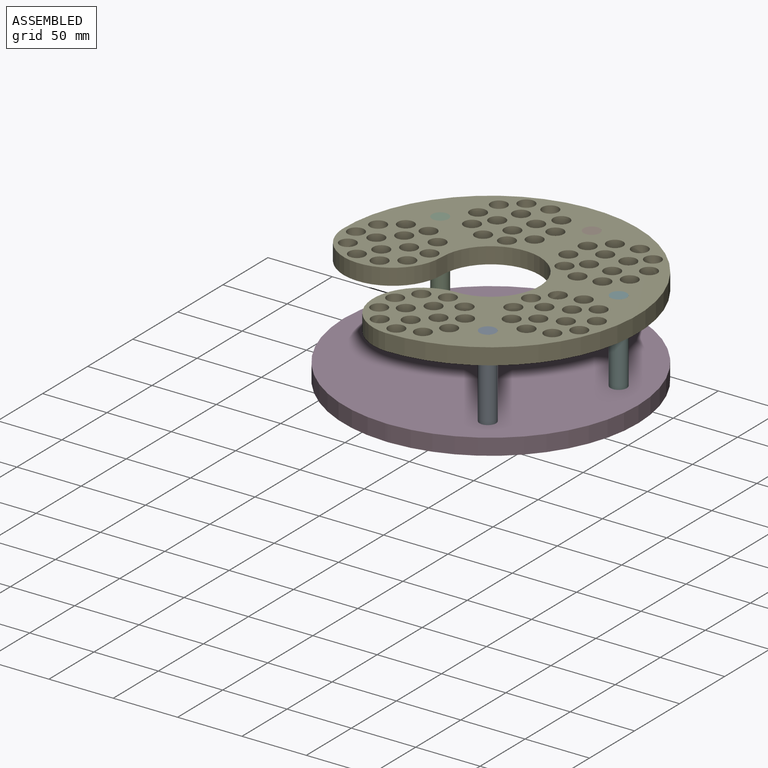
[diagram: assembled view]
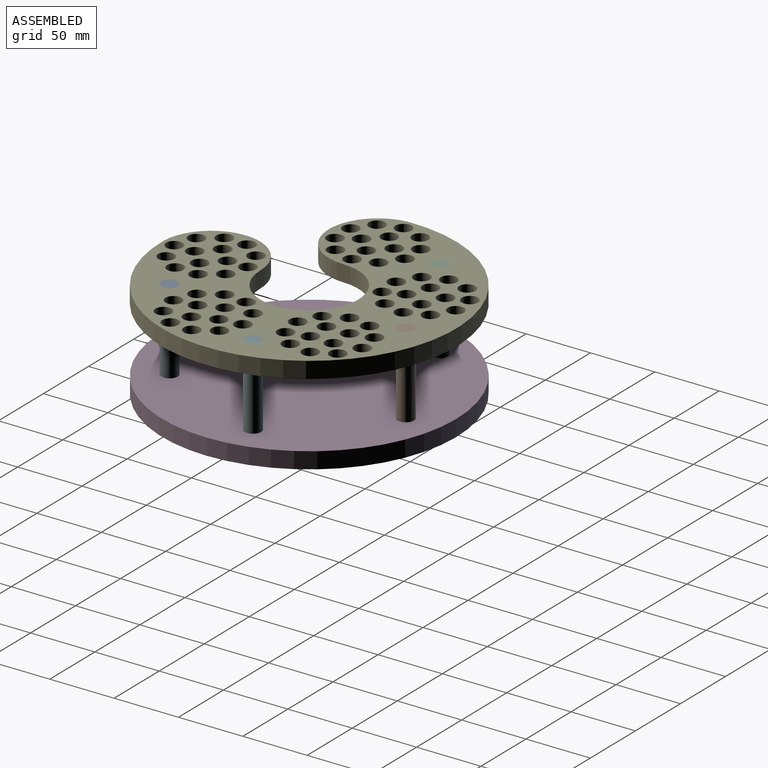
[diagram: assembled view, second angle]
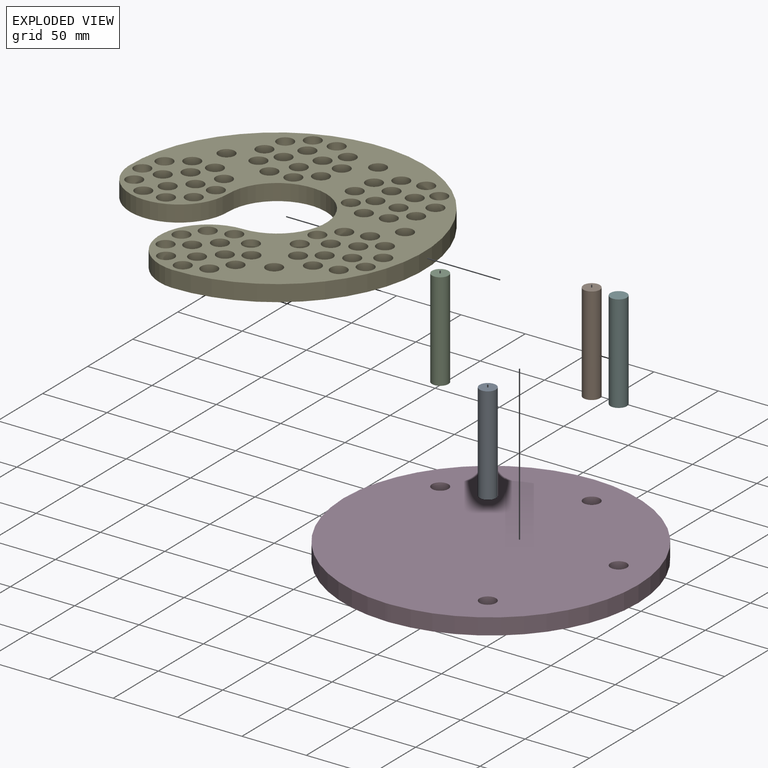
[diagram: exploded view]
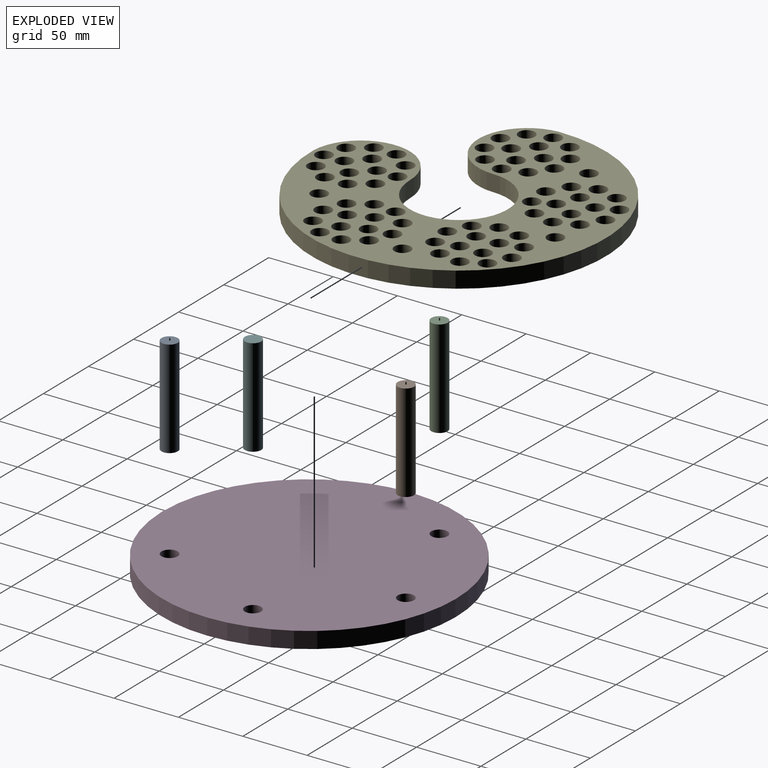
[diagram: exploded view, second angle]
ASSEMBLY  parts=6 mates=5
PART A: 3 faces, bbox 12.7x12.7x76.2 mm
  f0: cylinder r=6.35mm len=76.2mm, axis (0,0,-1), area 3040.2mm2, adj f1,f2
  f1: plane 12.7x12.7mm, normal (0,0,1), area 126.7mm2, adj f0
  f2: plane 12.7x12.7mm, normal (0,0,-1), area 126.7mm2, adj f0
PART B: same geometry as A
PART C: same geometry as A
PART D: 10 faces, bbox 228.6x228.6x12.7 mm
  f0: cylinder r=114.26mm len=112.04mm, axis (0,0,1), area 2223.6mm2, adj f1,f6,f8,f9
  f1: cylinder r=38.1mm len=12.7mm, axis (0,0,1), area 55.7mm2, adj f0,f2,f8,f9
  f2: cylinder r=114.26mm len=228.49mm, axis (0,0,1), area 6782.3mm2, adj f1,f6,f8,f9
  f3: cylinder r=6.35mm len=12.7mm, axis (0,0,1), area 506.7mm2, adj f8,f9
  f4: cylinder r=6.35mm len=12.7mm, axis (0,0,1), area 506.7mm2, adj f8,f9
  f5: cylinder r=6.35mm len=12.7mm, axis (0,0,1), area 506.7mm2, adj f8,f9
  f6: cylinder r=38.1mm len=12.7mm, axis (0,0,1), area 55.7mm2, adj f0,f2,f8,f9
  f7: cylinder r=6.35mm len=12.7mm, axis (0,0,1), area 506.7mm2, adj f8,f9
  f8: plane 228.56x228.56mm, normal (0,0,-1), area 40506.6mm2, adj f0,f1,f2,f3,f4,f5,f6,f7
  f9: plane 228.56x228.56mm, normal (0,0,1), area 40506.6mm2, adj f0,f1,f2,f3,f4,f5,f6,f7
PART E: 80 faces, bbox 228.5x228.5x12.7 mm
  f0: cylinder r=38.1mm len=76.14mm, axis (0,0,-1), area 1492.3mm2, adj f1,f77,f78,f79
  f1: cylinder r=38.1mm len=76.2mm, axis (0,0,-1), area 2280.2mm2, adj f0,f2,f78,f79
  f2: cylinder r=38.1mm len=76.14mm, axis (0,0,-1), area 1492.3mm2, adj f1,f77,f78,f79
  f3: cylinder r=6.35mm len=12.7mm, axis (0,0,-1), area 506.7mm2, adj f78,f79
  f4: cylinder r=6.35mm len=12.7mm, axis (0,0,-1), area 506.7mm2, adj f78,f79
  f5: cylinder r=6.35mm len=12.7mm, axis (0,0,-1), area 506.7mm2, adj f78,f79
  f6: cylinder r=6.35mm len=12.7mm, axis (0,0,-1), area 506.7mm2, adj f78,f79
  f7: cylinder r=6.35mm len=12.7mm, axis (0,0,-1), area 506.7mm2, adj f78,f79
  f8: cylinder r=6.35mm len=12.7mm, axis (0,0,-1), area 506.7mm2, adj f78,f79
  f9: cylinder r=6.35mm len=12.7mm, axis (0,0,-1), area 506.7mm2, adj f78,f79
  f10: cylinder r=6.35mm len=12.7mm, axis (0,0,-1), area 506.7mm2, adj f78,f79
  f11: cylinder r=6.35mm len=12.7mm, axis (0,0,-1), area 506.7mm2, adj f78,f79
  f12: cylinder r=6.35mm len=12.7mm, axis (0,0,-1), area 506.7mm2, adj f78,f79
  f13: cylinder r=6.35mm len=12.7mm, axis (0,0,-1), area 506.7mm2, adj f78,f79
  f14: cylinder r=6.35mm len=12.7mm, axis (0,0,-1), area 506.7mm2, adj f78,f79
  f15: cylinder r=6.35mm len=12.7mm, axis (0,0,-1), area 506.7mm2, adj f78,f79
  f16: cylinder r=6.35mm len=12.7mm, axis (0,0,-1), area 506.7mm2, adj f78,f79
  f17: cylinder r=6.35mm len=12.7mm, axis (0,0,-1), area 506.7mm2, adj f78,f79
  f18: cylinder r=6.35mm len=12.7mm, axis (0,0,-1), area 506.7mm2, adj f78,f79
  f19: cylinder r=6.35mm len=12.7mm, axis (0,0,-1), area 506.7mm2, adj f78,f79
  f20: cylinder r=6.35mm len=12.7mm, axis (0,0,-1), area 506.7mm2, adj f78,f79
  f21: cylinder r=6.35mm len=12.7mm, axis (0,0,-1), area 506.7mm2, adj f78,f79
  f22: cylinder r=6.35mm len=12.7mm, axis (0,0,-1), area 506.7mm2, adj f78,f79
  f23: cylinder r=6.35mm len=12.7mm, axis (0,0,-1), area 506.7mm2, adj f78,f79
  f24: cylinder r=6.35mm len=12.7mm, axis (0,0,-1), area 506.7mm2, adj f78,f79
  f25: cylinder r=6.35mm len=12.7mm, axis (0,0,-1), area 506.7mm2, adj f78,f79
  f26: cylinder r=6.35mm len=12.7mm, axis (0,0,-1), area 506.7mm2, adj f78,f79
  f27: cylinder r=6.35mm len=12.7mm, axis (0,0,-1), area 506.7mm2, adj f78,f79
  f28: cylinder r=6.35mm len=12.7mm, axis (0,0,-1), area 506.7mm2, adj f78,f79
  f29: cylinder r=6.35mm len=12.7mm, axis (0,0,-1), area 506.7mm2, adj f78,f79
  f30: cylinder r=6.35mm len=12.7mm, axis (0,0,-1), area 506.7mm2, adj f78,f79
  f31: cylinder r=6.35mm len=12.7mm, axis (0,0,-1), area 506.7mm2, adj f78,f79
  f32: cylinder r=6.35mm len=12.7mm, axis (0,0,-1), area 506.7mm2, adj f78,f79
  f33: cylinder r=6.35mm len=12.7mm, axis (0,0,-1), area 506.7mm2, adj f78,f79
  f34: cylinder r=6.35mm len=12.7mm, axis (0,0,-1), area 506.7mm2, adj f78,f79
  f35: cylinder r=6.35mm len=12.7mm, axis (0,0,-1), area 506.7mm2, adj f78,f79
  f36: cylinder r=6.35mm len=12.7mm, axis (0,0,-1), area 506.7mm2, adj f78,f79
  f37: cylinder r=6.35mm len=12.7mm, axis (0,0,-1), area 506.7mm2, adj f78,f79
  f38: cylinder r=6.35mm len=12.7mm, axis (0,0,-1), area 506.7mm2, adj f78,f79
  f39: cylinder r=6.35mm len=12.7mm, axis (0,0,-1), area 506.7mm2, adj f78,f79
  f40: cylinder r=6.35mm len=12.7mm, axis (0,0,-1), area 506.7mm2, adj f78,f79
  f41: cylinder r=6.35mm len=12.7mm, axis (0,0,-1), area 506.7mm2, adj f78,f79
  f42: cylinder r=6.35mm len=12.7mm, axis (0,0,-1), area 506.7mm2, adj f78,f79
  f43: cylinder r=6.35mm len=12.7mm, axis (0,0,-1), area 506.7mm2, adj f78,f79
  f44: cylinder r=6.35mm len=12.7mm, axis (0,0,-1), area 506.7mm2, adj f78,f79
  f45: cylinder r=6.35mm len=12.7mm, axis (0,0,-1), area 506.7mm2, adj f78,f79
  f46: cylinder r=6.35mm len=12.7mm, axis (0,0,-1), area 506.7mm2, adj f78,f79
  f47: cylinder r=6.35mm len=12.7mm, axis (0,0,-1), area 506.7mm2, adj f78,f79
  f48: cylinder r=6.35mm len=12.7mm, axis (0,0,-1), area 506.7mm2, adj f78,f79
  f49: cylinder r=6.35mm len=12.7mm, axis (0,0,-1), area 506.7mm2, adj f78,f79
  f50: cylinder r=6.35mm len=12.7mm, axis (0,0,-1), area 506.7mm2, adj f78,f79
  f51: cylinder r=6.35mm len=12.7mm, axis (0,0,-1), area 506.7mm2, adj f78,f79
  f52: cylinder r=6.35mm len=12.7mm, axis (0,0,-1), area 506.7mm2, adj f78,f79
  f53: cylinder r=6.35mm len=12.7mm, axis (0,0,-1), area 506.7mm2, adj f78,f79
  f54: cylinder r=6.35mm len=12.7mm, axis (0,0,-1), area 506.7mm2, adj f78,f79
  f55: cylinder r=6.35mm len=12.7mm, axis (0,0,-1), area 506.7mm2, adj f78,f79
  f56: cylinder r=6.35mm len=12.7mm, axis (0,0,-1), area 506.7mm2, adj f78,f79
  f57: cylinder r=6.35mm len=12.7mm, axis (0,0,-1), area 506.7mm2, adj f78,f79
  f58: cylinder r=6.35mm len=12.7mm, axis (0,0,-1), area 506.7mm2, adj f78,f79
  f59: cylinder r=6.35mm len=12.7mm, axis (0,0,-1), area 506.7mm2, adj f78,f79
  f60: cylinder r=6.35mm len=12.7mm, axis (0,0,-1), area 506.7mm2, adj f78,f79
  f61: cylinder r=6.35mm len=12.7mm, axis (0,0,-1), area 506.7mm2, adj f78,f79
  f62: cylinder r=6.35mm len=12.7mm, axis (0,0,-1), area 506.7mm2, adj f78,f79
  f63: cylinder r=6.35mm len=12.7mm, axis (0,0,-1), area 506.7mm2, adj f78,f79
  f64: cylinder r=6.35mm len=12.7mm, axis (0,0,-1), area 506.7mm2, adj f78,f79
  f65: cylinder r=6.35mm len=12.7mm, axis (0,0,-1), area 506.7mm2, adj f78,f79
  f66: cylinder r=6.35mm len=12.7mm, axis (0,0,-1), area 506.7mm2, adj f78,f79
  f67: cylinder r=6.35mm len=12.7mm, axis (0,0,-1), area 506.7mm2, adj f78,f79
  f68: cylinder r=6.35mm len=12.7mm, axis (0,0,-1), area 506.7mm2, adj f78,f79
  f69: cylinder r=6.35mm len=12.7mm, axis (0,0,-1), area 506.7mm2, adj f78,f79
  f70: cylinder r=6.35mm len=12.7mm, axis (0,0,-1), area 506.7mm2, adj f78,f79
  f71: cylinder r=6.35mm len=12.7mm, axis (0,0,-1), area 506.7mm2, adj f78,f79
  f72: cylinder r=6.35mm len=12.7mm, axis (0,0,-1), area 506.7mm2, adj f78,f79
  f73: cylinder r=6.35mm len=12.7mm, axis (0,0,-1), area 506.7mm2, adj f78,f79
  f74: cylinder r=6.35mm len=12.7mm, axis (0,0,-1), area 506.7mm2, adj f78,f79
  f75: cylinder r=6.35mm len=12.7mm, axis (0,0,-1), area 506.7mm2, adj f78,f79
  f76: cylinder r=6.35mm len=12.7mm, axis (0,0,-1), area 506.7mm2, adj f78,f79
  f77: cylinder r=114.26mm len=228.52mm, axis (0,0,-1), area 6893.7mm2, adj f0,f2,f78,f79
  f78: plane 228.52x228.52mm, normal (0,0,1), area 22525.7mm2, adj f0,f1,f2,f3,f4,f5,f6,f7
  f79: plane 228.52x228.52mm, normal (0,0,-1), area 22525.7mm2, adj f0,f1,f2,f3,f4,f5,f6,f7
PART F: same geometry as A
PLACE A t=(93.58,-89.94,-6.22)mm
PLACE B t=(61.54,71.17,-6.22)mm
PLACE C t=(-29.72,33.37,-6.22)mm
PLACE D t=(-29.72,33.37,6.48)mm
PLACE E t=(-29.72,33.37,57.28)mm
PLACE F t=(131.39,1.32,-6.22)mm
MATE cylindrical F.f0 <-> E.f73  axis (0,0,1) through (70.55,67.3,69.98)mm
MATE cylindrical A.f0 <-> D.f5  axis (0,0,-1) through (32.75,-23.96,-6.22)mm
MATE cylindrical A.f0 <-> E.f75  axis (0,0,1) through (32.75,-23.96,69.98)mm
MATE cylindrical C.f0 <-> D.f7  axis (0,0,-1) through (-90.56,99.35,-6.22)mm
MATE cylindrical B.f0 <-> E.f71  axis (0,0,1) through (0.7,137.15,69.98)mm
